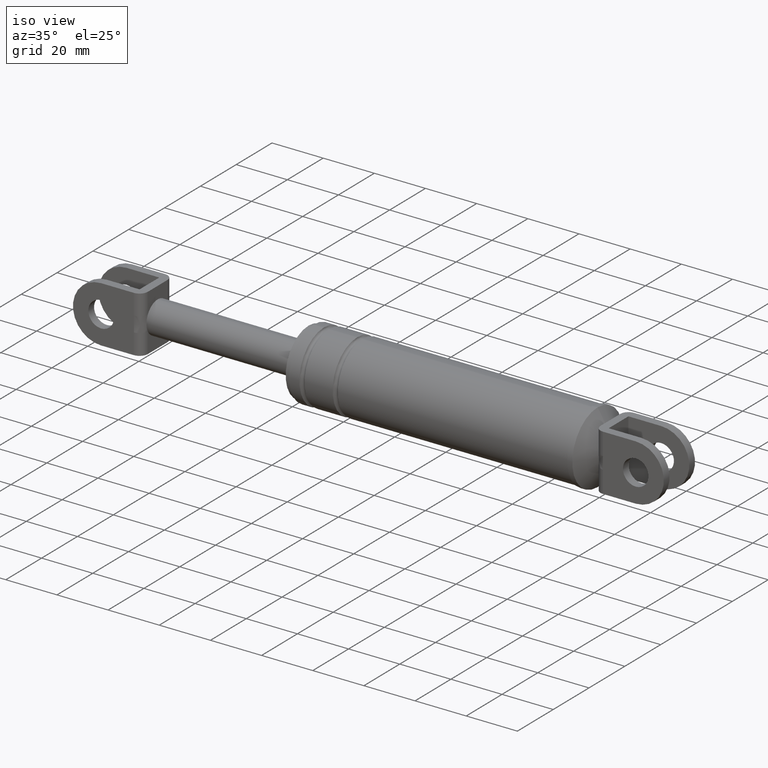
[diagram: clean part render]
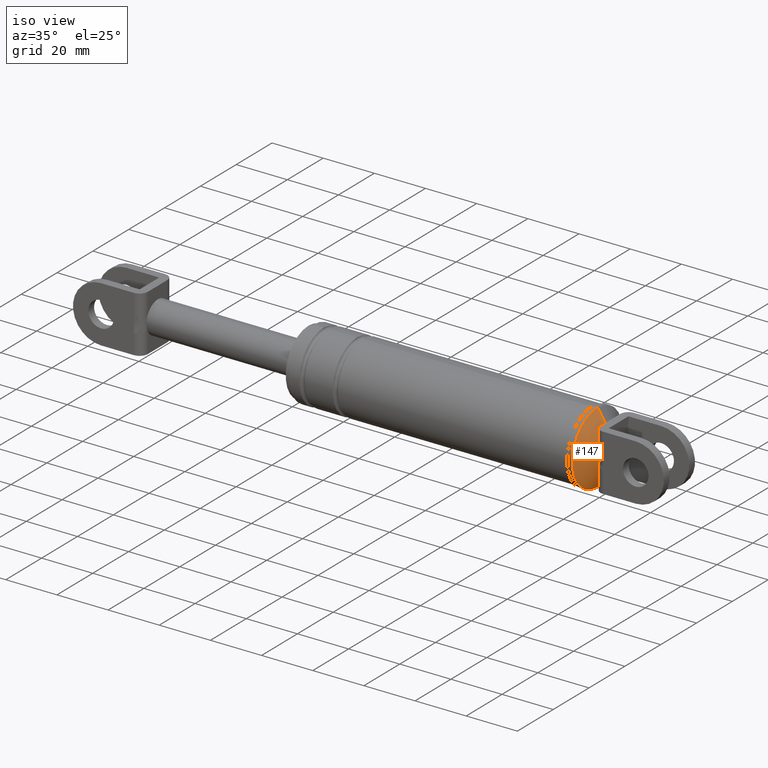
[diagram: same view with one face highlighted and labeled with its STEP entity id]
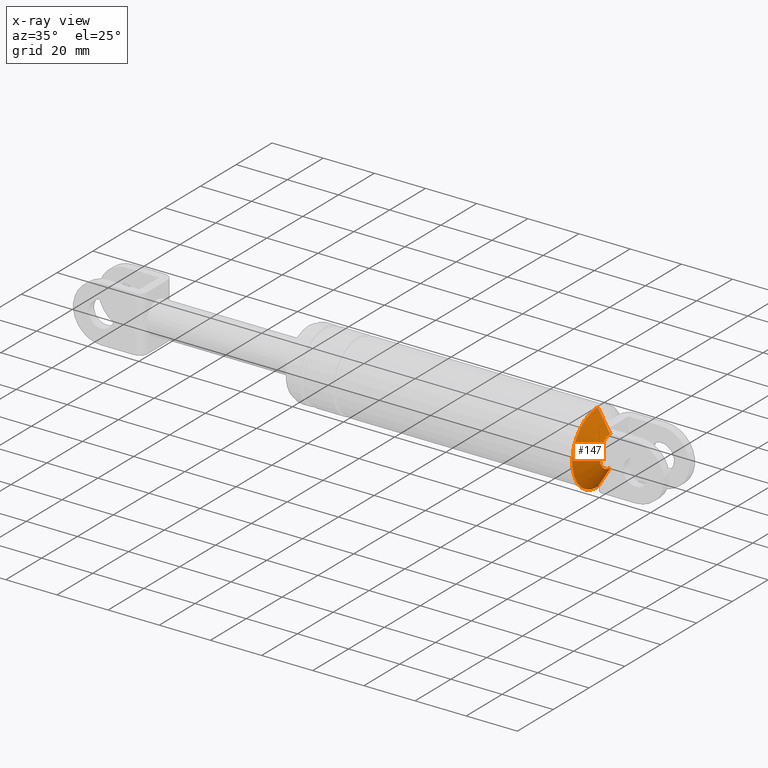
[diagram: x-ray of the same camera — body ghosted, the highlighted face saturated]
A machine part, iso view. The second image highlights one B-rep face of the part: STEP entity #147.
The next image is the same camera in x-ray: the body ghosted, the highlighted face saturated — about 0% of this face is hidden behind the body in this view.
In plain terms, the highlighted face is a freeform B-spline surface patch.
Its self-contained STEP definition (entity closure, byte-faithful):
#147=ADVANCED_FACE('',(#533),#532,.T.);
#532=( BOUNDED_SURFACE() B_SPLINE_SURFACE( 2,1,((#1189,#1190),(#1191,#1192),(#1193,#1194),(#1195,#1196),(#1197,#1198)), .UNSPECIFIED.,.F.,.F.,.F.) B_SPLINE_SURFACE_WITH_KNOTS((3,2,3),(2,2),(0.00000000000E+000,5.00000000000E-001,1.00000000000E+000),(0.00000000000E+000,1.00000000000E+000), .UNSPECIFIED. ) GEOMETRIC_REPRESENTATION_ITEM() RATIONAL_B_SPLINE_SURFACE(((1.00000000000E+000,1.00000000000E+000),(7.07106781187E-001,7.07106781187E-001),(1.00000000000E+000,1.00000000000E+000),(7.07106781187E-001,7.07106781187E-001),(1.00000000000E+000,1.00000000000E+000))) REPRESENTATION_ITEM('') SURFACE() );
#533=FACE_OUTER_BOUND('',#1199,.T.);
#1189=CARTESIAN_POINT('',(3.08032063586E+002,0.00000000000E+000,1.86691405396E+002));
#1190=CARTESIAN_POINT('',(2.95723167765E+002,-4.03052780251E-014,1.66750994167E+002));
#1191=CARTESIAN_POINT('',(3.08032063586E+002,0.00000000000E+000,1.86691405396E+002));
#1192=CARTESIAN_POINT('',(2.95723167765E+002,-1.99404112295E+001,1.66750994167E+002));
#1193=CARTESIAN_POINT('',(3.08032063586E+002,0.00000000000E+000,1.86691405396E+002));
#1194=CARTESIAN_POINT('',(2.95723167765E+002,-1.99404112295E+001,1.86691405396E+002));
#1195=CARTESIAN_POINT('',(3.08032063586E+002,0.00000000000E+000,1.86691405396E+002));
#1196=CARTESIAN_POINT('',(2.95723167765E+002,-1.99404112295E+001,2.06631816626E+002));
#1197=CARTESIAN_POINT('',(3.08032063586E+002,0.00000000000E+000,1.86691405396E+002));
#1198=CARTESIAN_POINT('',(2.95723167765E+002,3.78632819465E-014,2.06631816626E+002));
#1199=EDGE_LOOP('',(#1562,#1563,#1564,#1565,#1566,#1567));
#1562=ORIENTED_EDGE('',*,*,#1723,.T.);
#1563=ORIENTED_EDGE('',*,*,#1715,.T.);
#1564=ORIENTED_EDGE('',*,*,#1731,.T.);
#1565=ORIENTED_EDGE('',*,*,#1796,.T.);
#1566=ORIENTED_EDGE('',*,*,#1795,.F.);
#1567=ORIENTED_EDGE('',*,*,#1797,.F.);
#1715=EDGE_CURVE('',#1892,#1907,#1914,.T.);
#1723=EDGE_CURVE('',#1968,#1892,#1969,.T.);
#1731=EDGE_CURVE('',#1907,#2015,#2022,.T.);
#1795=EDGE_CURVE('',#2425,#2424,#2444,.T.);
#1796=EDGE_CURVE('',#2015,#2424,#2450,.T.);
#1797=EDGE_CURVE('',#1968,#2425,#2456,.T.);
#1892=VERTEX_POINT('',#2924);
#1907=VERTEX_POINT('',#2941);
#1914=CIRCLE('',#2949,6.00000000000E+000);
#1968=VERTEX_POINT('',#2980);
#1969=CIRCLE('',#2984,6.00000000000E+000);
#2015=VERTEX_POINT('',#3008);
#2022=CIRCLE('',#3016,6.00000000000E+000);
#2424=VERTEX_POINT('',#3268);
#2425=VERTEX_POINT('',#3269);
#2444=CIRCLE('',#3281,1.41000000000E+001);
#2450=(BOUNDED_CURVE() B_SPLINE_CURVE(1,(#3282,#3283),.UNSPECIFIED.,.F.,.F.) B_SPLINE_CURVE_WITH_KNOTS((2,2),(3.00896503032E-001,7.07106781040E-001),.UNSPECIFIED.) CURVE() GEOMETRIC_REPRESENTATION_ITEM() RATIONAL_B_SPLINE_CURVE((1.00000000000E+000,1.00000000000E+000)) REPRESENTATION_ITEM('') );
#2456=(BOUNDED_CURVE() B_SPLINE_CURVE(1,(#3284,#3285),.UNSPECIFIED.,.F.,.F.) B_SPLINE_CURVE_WITH_KNOTS((2,2),(3.00896494629E-001,7.07106774282E-001),.UNSPECIFIED.) CURVE() GEOMETRIC_REPRESENTATION_ITEM() RATIONAL_B_SPLINE_CURVE((7.50000000000E-001,7.50000000000E-001)) REPRESENTATION_ITEM('') );
#2924=CARTESIAN_POINT('',(3.04328359882E+002,-5.49999700000E+000,1.84293482754E+002));
#2941=CARTESIAN_POINT('',(3.04328359882E+002,-5.49999700000E+000,1.89089328039E+002));
#2946=CARTESIAN_POINT('',(3.04328359882E+002,0.00000000000E+000,1.86691405396E+002));
#2947=DIRECTION('',(-1.00000000000E+000,0.00000000000E+000,0.00000000000E+000));
#2948=DIRECTION('',(-0.00000000000E+000,-0.00000000000E+000,-1.00000000000E+000));
#2949=AXIS2_PLACEMENT_3D('',#2946,#2947,#2948);
#2980=CARTESIAN_POINT('',(3.04328359882E+002,-2.42135298669E-007,1.80691405396E+002));
#2981=CARTESIAN_POINT('',(3.04328359882E+002,0.00000000000E+000,1.86691405396E+002));
#2982=DIRECTION('',(-1.00000000000E+000,0.00000000000E+000,0.00000000000E+000));
#2983=DIRECTION('',(-0.00000000000E+000,9.16666166667E-001,-3.99653773770E-001));
#2984=AXIS2_PLACEMENT_3D('',#2981,#2982,#2983);
#3008=CARTESIAN_POINT('',(3.04328359882E+002,1.08188818300E-010,1.92691405396E+002));
#3013=CARTESIAN_POINT('',(3.04328359882E+002,0.00000000000E+000,1.86691405396E+002));
#3014=DIRECTION('',(-1.00000000000E+000,0.00000000000E+000,0.00000000000E+000));
#3015=DIRECTION('',(-0.00000000000E+000,-0.00000000000E+000,-1.00000000000E+000));
#3016=AXIS2_PLACEMENT_3D('',#3013,#3014,#3015);
#3268=CARTESIAN_POINT('',(2.99328359882E+002,0.00000000000E+000,2.00791405396E+002));
#3269=CARTESIAN_POINT('',(2.99328359882E+002,5.92118946467E-016,1.72591405396E+002));
#3278=CARTESIAN_POINT('',(2.99328359882E+002,0.00000000000E+000,1.86691405396E+002));
#3279=DIRECTION('',(-1.00000000000E+000,0.00000000000E+000,0.00000000000E+000));
#3280=DIRECTION('',(0.00000000000E+000,-1.22460635382E-016,1.00000000000E+000));
#3281=AXIS2_PLACEMENT_3D('',#3278,#3279,#3280);
#3282=CARTESIAN_POINT('',(3.04328359877E+002,1.01979700293E-014,1.92691405404E+002));
#3283=CARTESIAN_POINT('',(2.99328359884E+002,2.39652295321E-014,2.00791405393E+002));
#3284=CARTESIAN_POINT('',(3.04328359980E+002,-1.10463239545E-014,1.80691405556E+002));
#3285=CARTESIAN_POINT('',(2.99328359967E+002,-2.59588617301E-014,1.72591405534E+002));